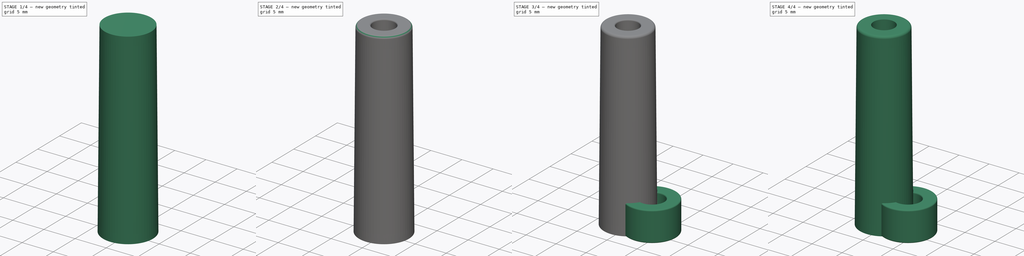
[diagram: build sequence overview — one tinted view per stage of 4, left to right]
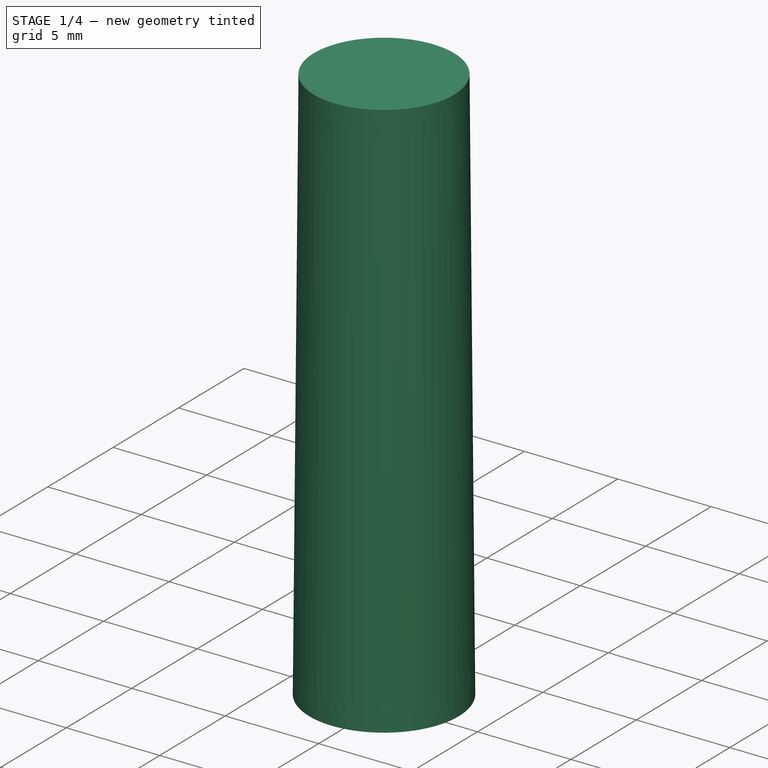
[diagram: stage 1 of 4 — iso view after this stage's code; geometry added in this stage tinted green]
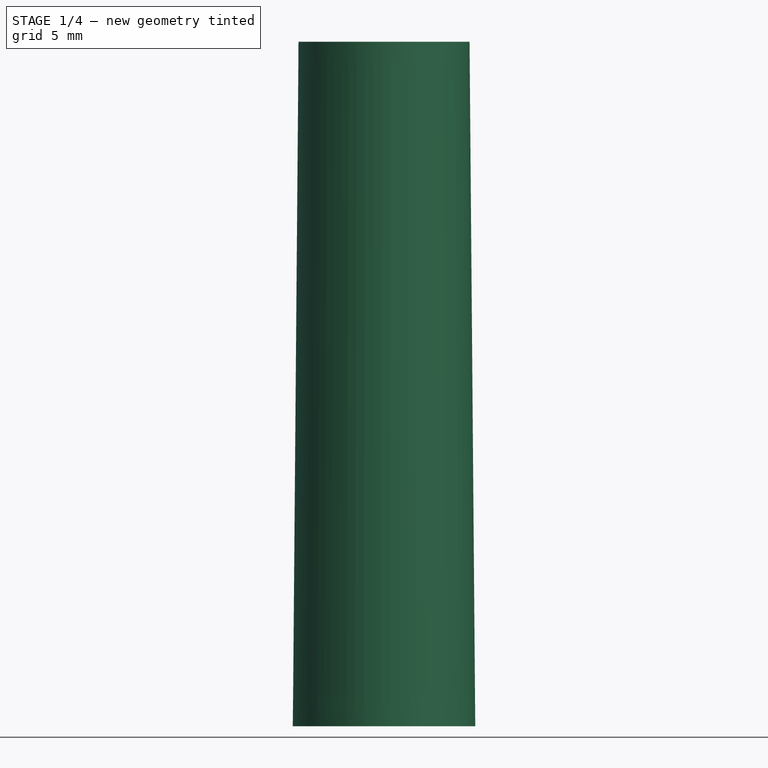
[diagram: stage 1 of 4 — front view after this stage's code; geometry added in this stage tinted green]
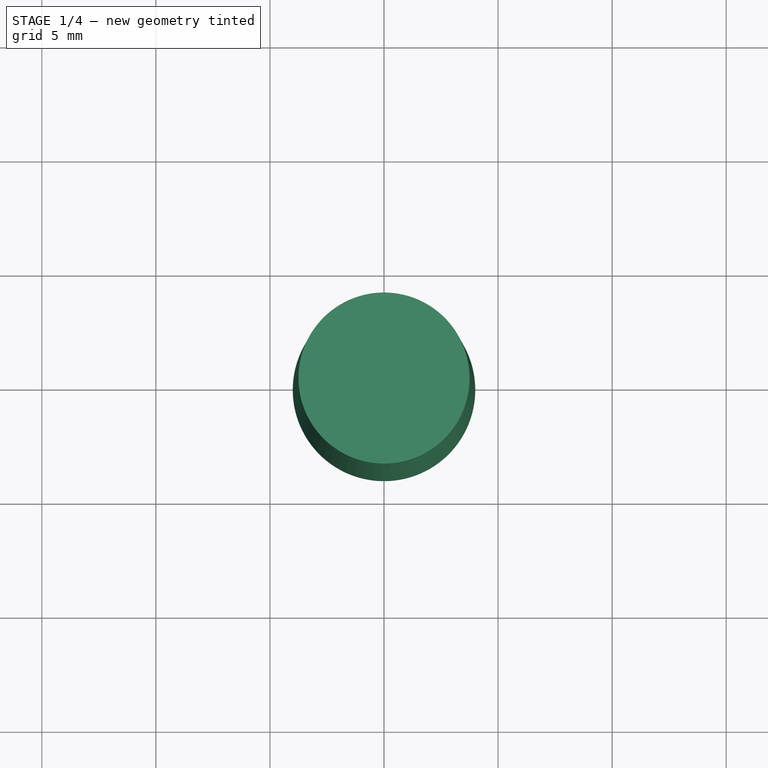
[diagram: stage 1 of 4 — top view after this stage's code; geometry added in this stage tinted green]
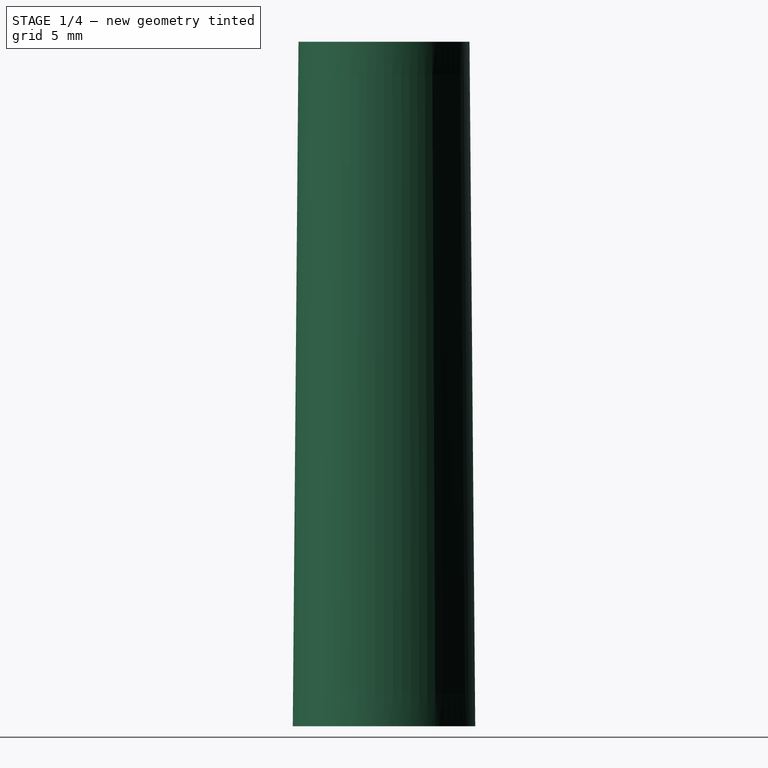
[diagram: stage 1 of 4 — right view after this stage's code; geometry added in this stage tinted green]
FCSTD DOCUMENT  (FreeCAD 0.16R6712 (Git))
Label: Antenna Mast Cap
License: All rights reserved
LicenseURL: http://en.wikipedia.org/wiki/All_rights_reserved
objects: PartDesign::Fillet×5, Part::Cone×2, Part::Cut×1, Sketcher::SketchObject×1, PartDesign::Pad×1, Part::MultiFuse×1
note: 12 computed .brp shape members not serialized (recipe doc carries the construction recipe); baked Part::Feature solids carry a one-line shape summary decoded from their .brp

FEATURE [Part::Cone] Cone  label="Inner Cutout"
  Angle = 360
  Height = 30
  Radius1 = 2
  Radius2 = 1.75
FEATURE [Part::Cone] Cone001  label="Outer Shell"
  Angle = 360
  Height = 30
  Radius1 = 4
  Radius2 = 3.75
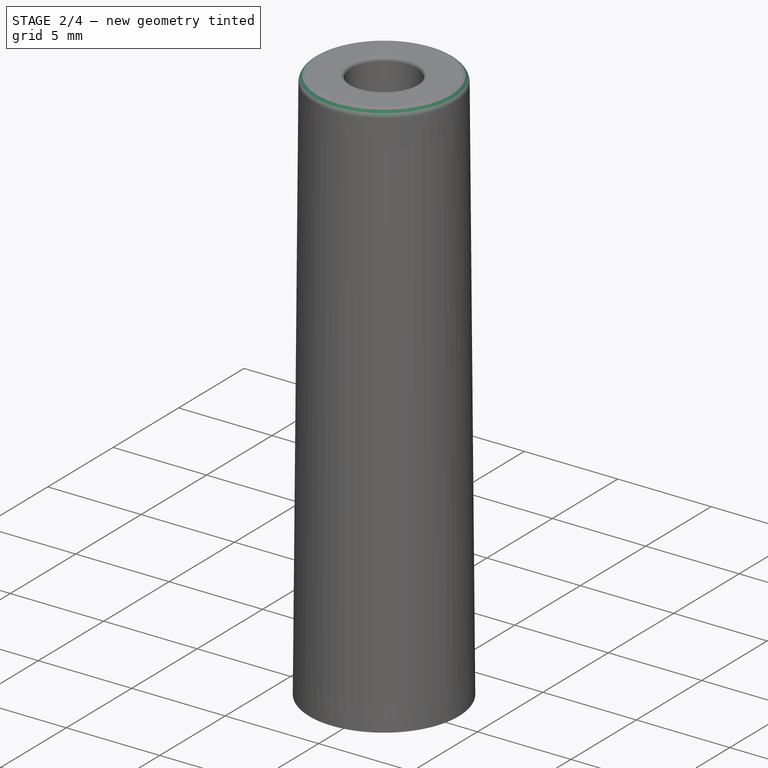
[diagram: stage 2 of 4 — iso view after this stage's code; geometry added in this stage tinted green]
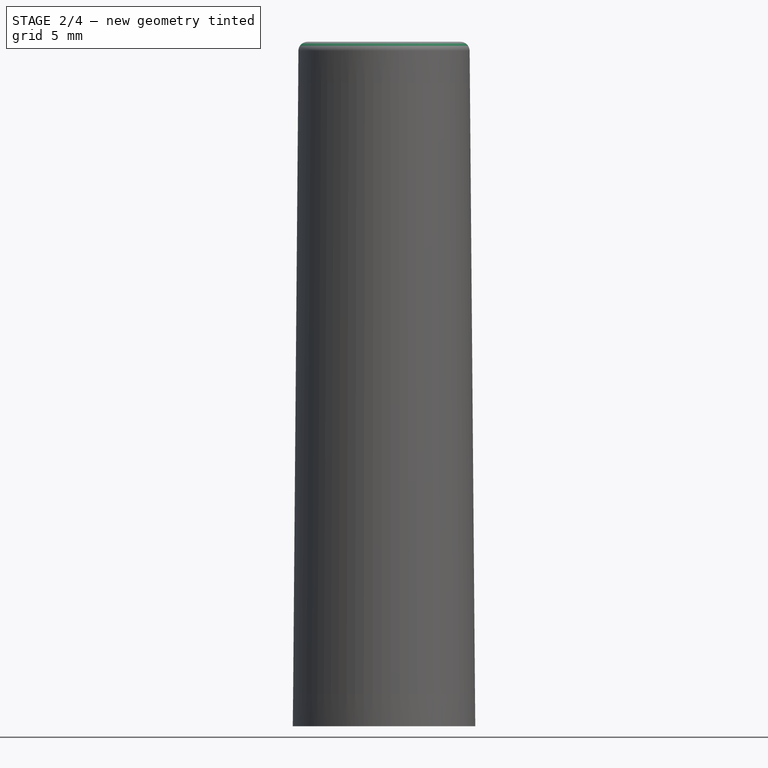
[diagram: stage 2 of 4 — front view after this stage's code; geometry added in this stage tinted green]
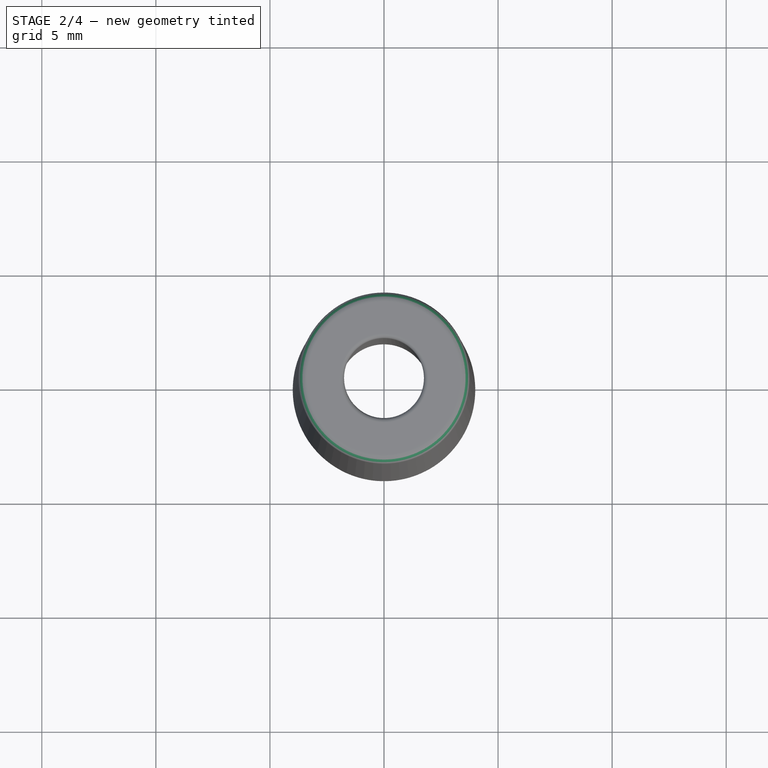
[diagram: stage 2 of 4 — top view after this stage's code; geometry added in this stage tinted green]
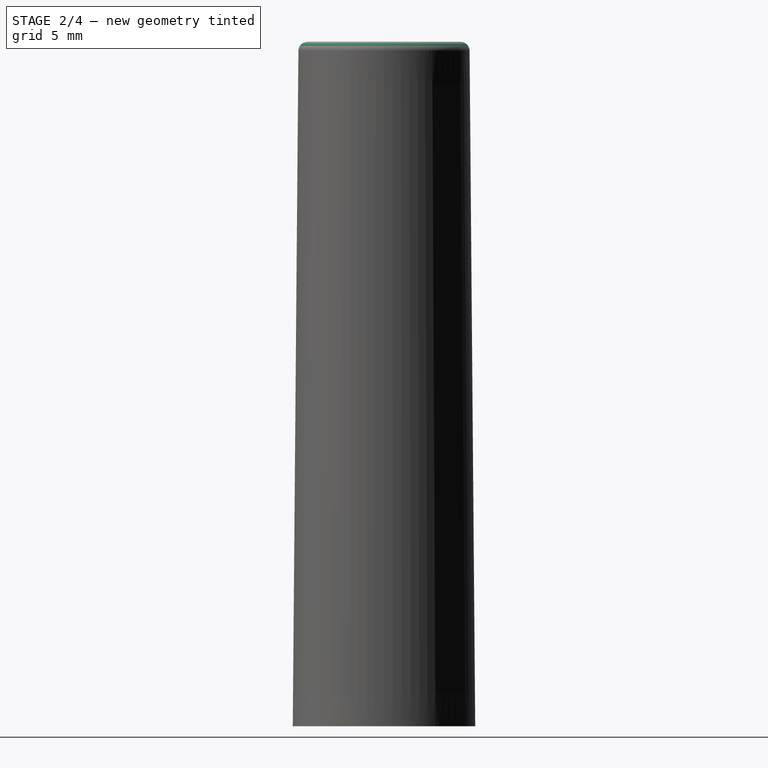
[diagram: stage 2 of 4 — right view after this stage's code; geometry added in this stage tinted green]
FEATURE [Part::Cut] Cut  label="Cap"
  Base = -> Cone001
  Tool = -> Cone
FEATURE [PartDesign::Fillet] Fillet  label="Cap with smoothed top"
  Base = -> Cut [Edge1]
  Radius = 0.4
FEATURE [PartDesign::Fillet] Fillet004
  Base = -> Fillet [Edge7]
  Radius = 0.2
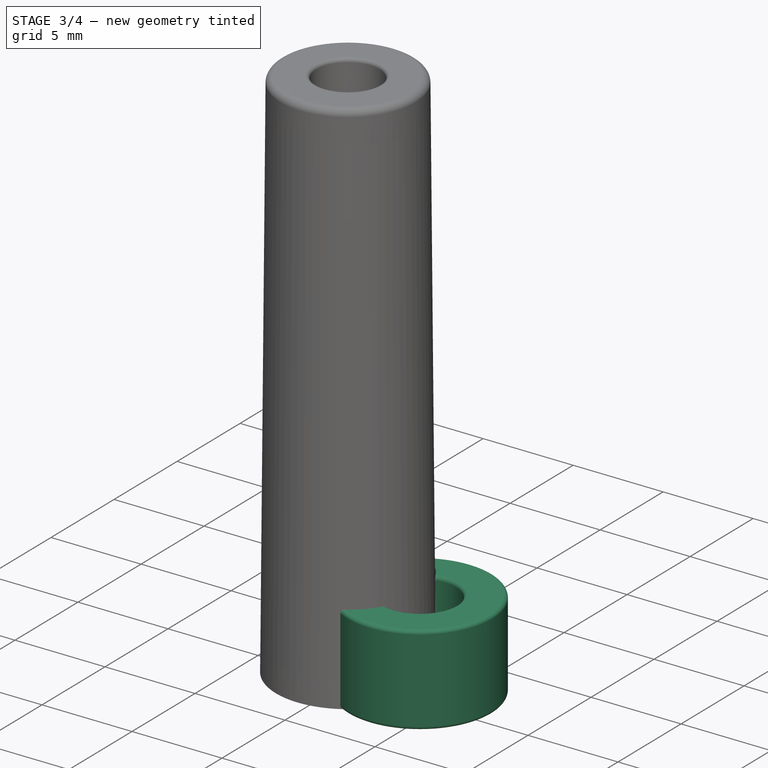
[diagram: stage 3 of 4 — iso view after this stage's code; geometry added in this stage tinted green]
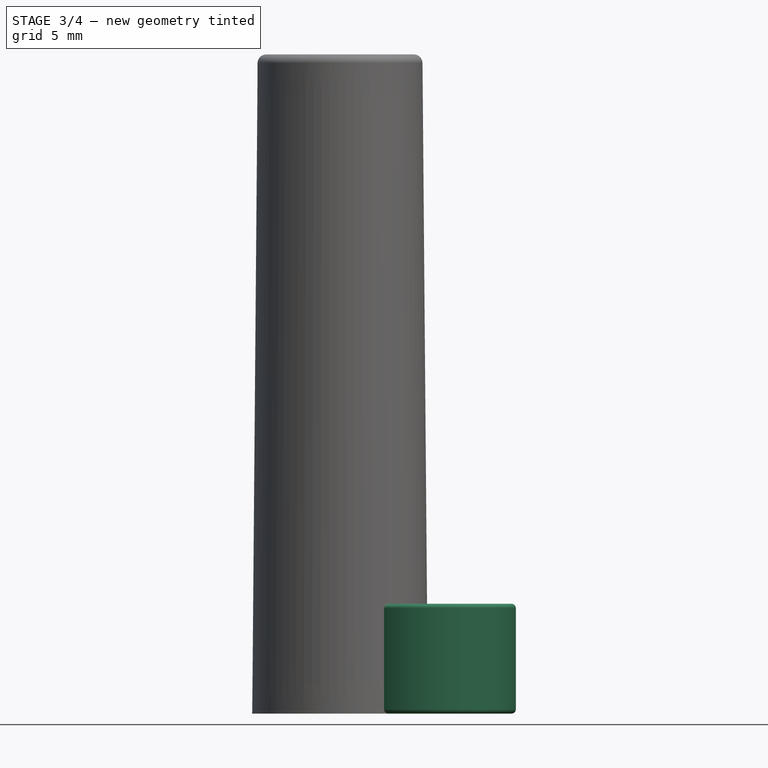
[diagram: stage 3 of 4 — front view after this stage's code; geometry added in this stage tinted green]
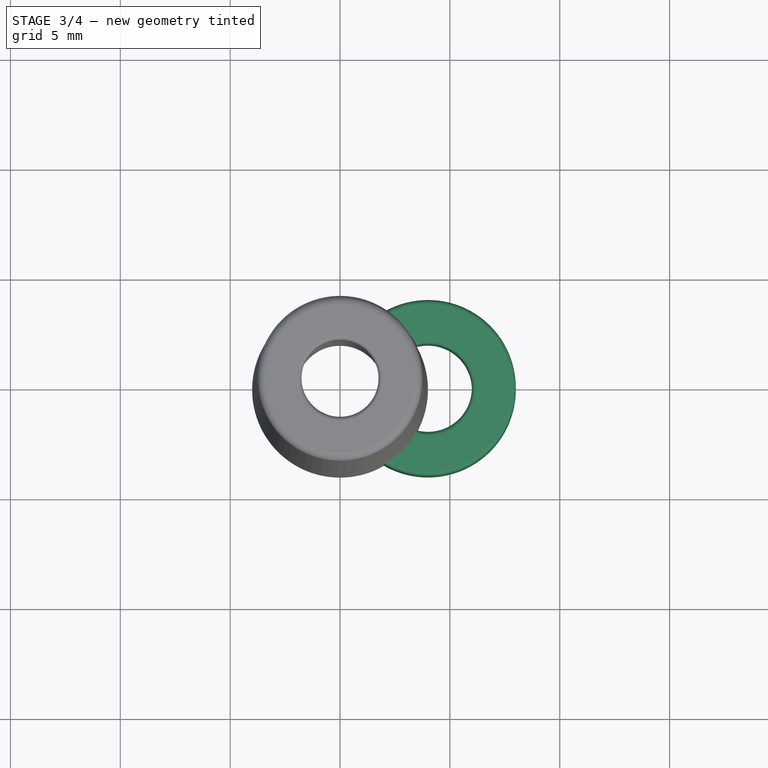
[diagram: stage 3 of 4 — top view after this stage's code; geometry added in this stage tinted green]
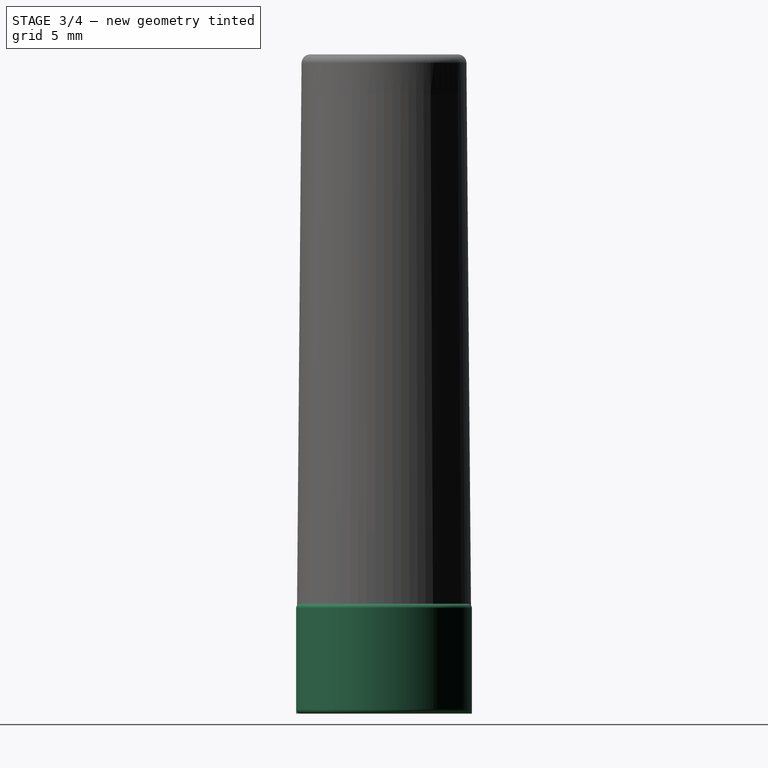
[diagram: stage 3 of 4 — right view after this stage's code; geometry added in this stage tinted green]
FEATURE [Sketcher::SketchObject] Sketch  label="Tie Loop"
  ExternalGeometry = -> [Cut]
  Placement = pos=(0,0,0) rot=(1,0,0;3.14159rad)
  Support = -> Cut [Face3]
  sketch-geometry (4):
    g0: ArcOfCircle CenterX=0 CenterY=0 CenterZ=0 NormalX=0 NormalY=0 NormalZ=1 Radius=4 StartAngle=0.505361 EndAngle=1.0472
    g1: ArcOfCircle CenterX=4 CenterY=0 CenterZ=0 NormalX=0 NormalY=0 NormalZ=1 Radius=4 StartAngle=4.18879 EndAngle=8.37758
    g2: ArcOfCircle CenterX=4 CenterY=0 CenterZ=0 NormalX=0 NormalY=0 NormalZ=1 Radius=2 StartAngle=4.45971 EndAngle=8.10666
    g3: ArcOfCircle CenterX=0 CenterY=0 CenterZ=0 NormalX=0 NormalY=0 NormalZ=1 Radius=4 StartAngle=5.23599 EndAngle=5.77782
  constraints (14):
    c: Radius(g1) = 4
    c: Coincident(g2,g1)
    c: Radius(g2) = 2
    c: Equal(g0,g3)
    c: Coincident(g0,g3)
    c: Coincident(g1,g3)
    c: Coincident(g1,g0)
    c: Coincident(g2,g3)
    c: Coincident(g2,g0)
    c: PointOnObject(g0,g-3)
    c: PointOnObject(g0,g-3)
    c: PointOnObject(g2,g-3)
    c: PointOnObject(g1,g-1)
    c: PointOnObject(g1,g-3)
FEATURE [PartDesign::Pad] Pad  label="Tie Loop Pad"
  Length = 5
  Length2 = 100
  Reversed = true
  Sketch = -> Sketch
  Type = 0
FEATURE [PartDesign::Fillet] Fillet001
  Base = -> Pad [Edge4,Edge12,Edge11,Edge3]
  Radius = 0.2
FEATURE [Part::MultiFuse] Fusion  label="Complete Cap"
  Shapes = -> [Fillet001,Fillet004]
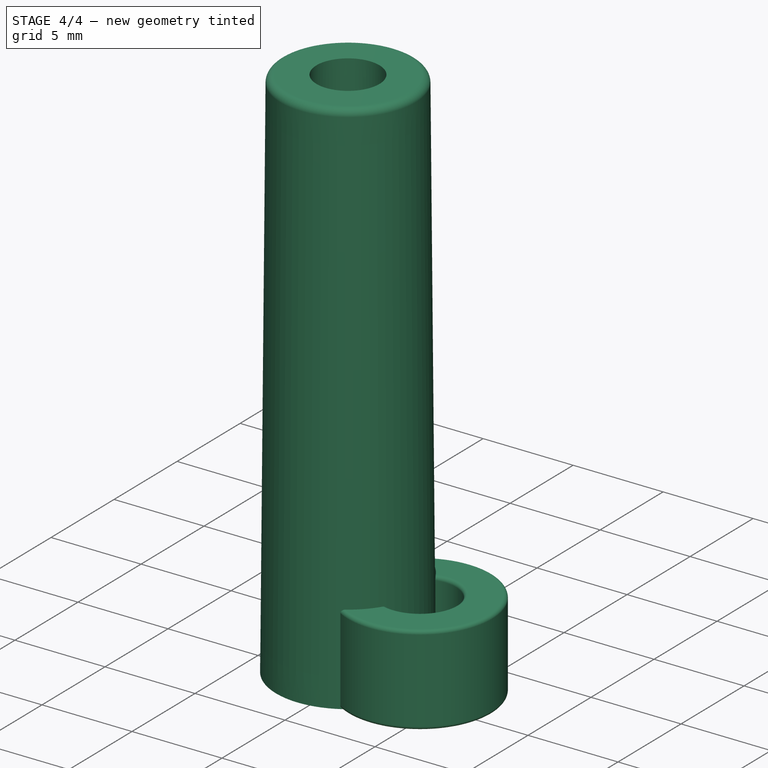
[diagram: stage 4 of 4 — iso view after this stage's code; geometry added in this stage tinted green]
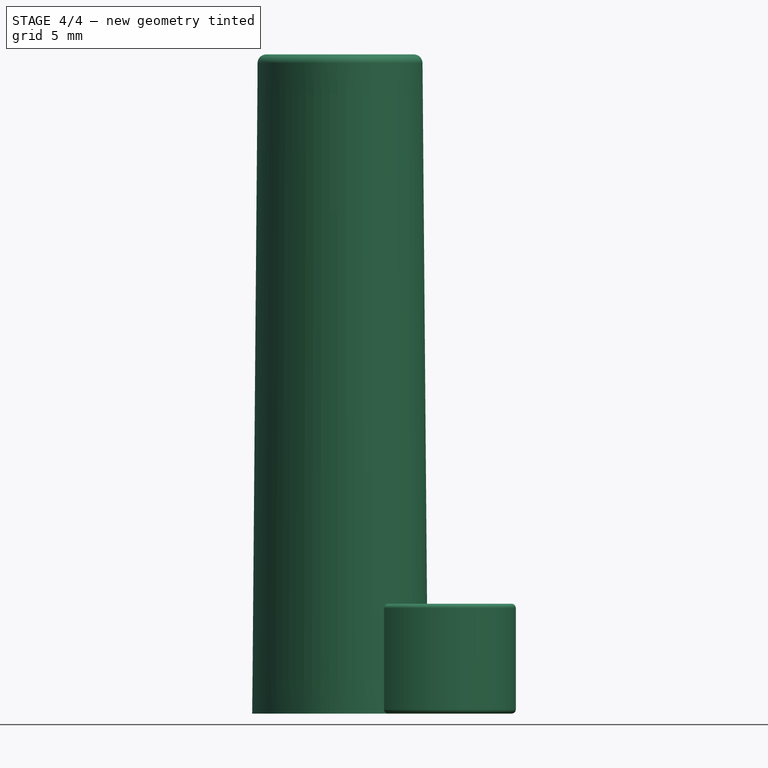
[diagram: stage 4 of 4 — front view after this stage's code; geometry added in this stage tinted green]
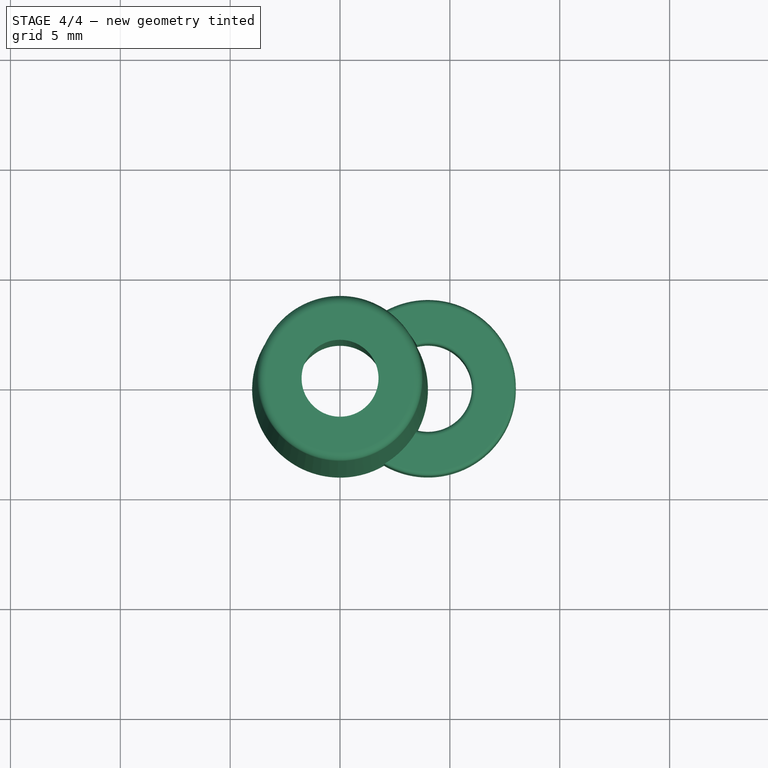
[diagram: stage 4 of 4 — top view after this stage's code; geometry added in this stage tinted green]
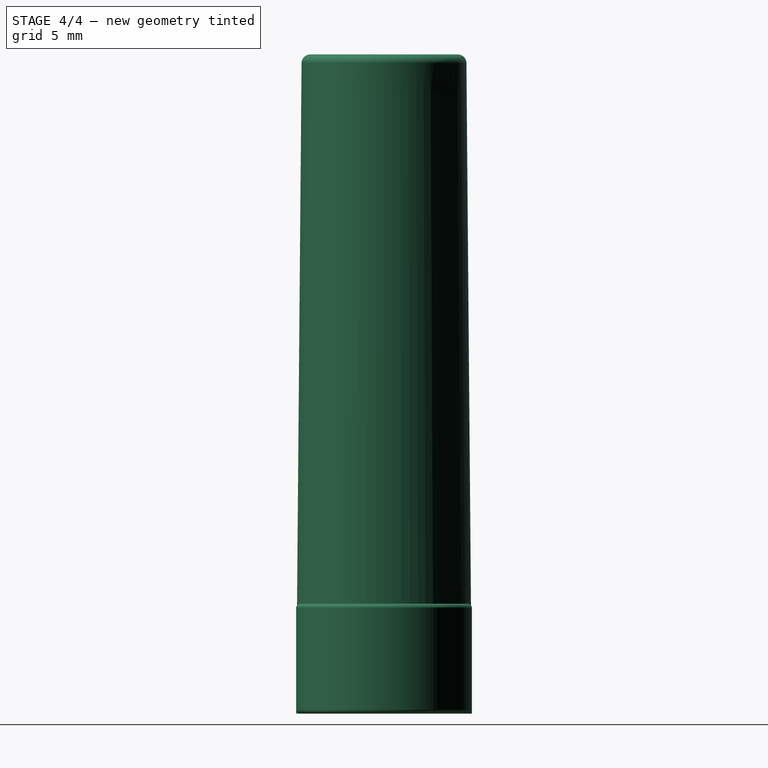
[diagram: stage 4 of 4 — right view after this stage's code; geometry added in this stage tinted green]
FEATURE [PartDesign::Fillet] Fillet002
  Base = -> Fillet [Edge3]
  Radius = 0.2
FEATURE [PartDesign::Fillet] Fillet003
  Base = -> Fillet002 [Edge8]
  Radius = 0.2
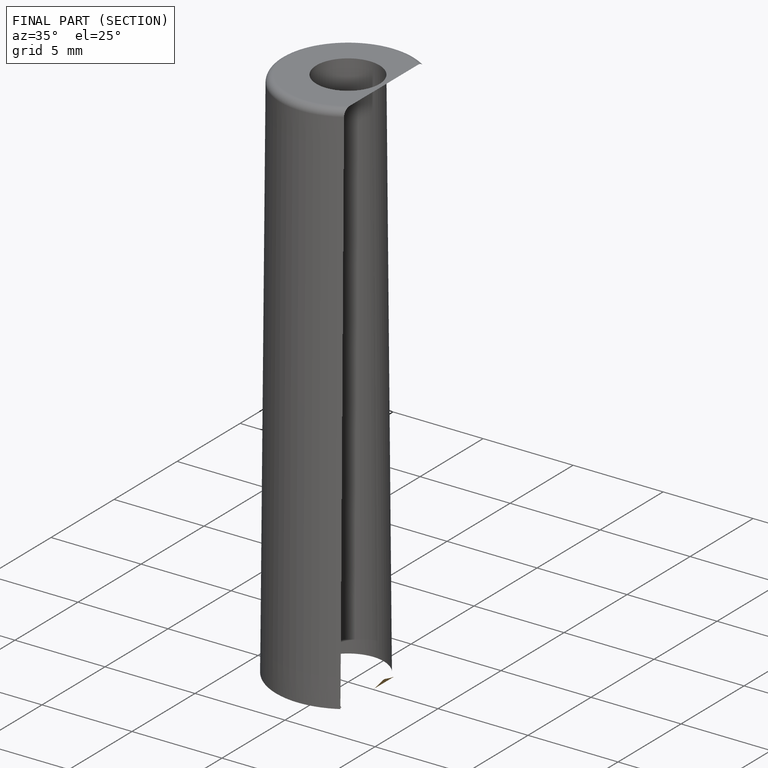
[diagram: finished part — half-section view (interior)]
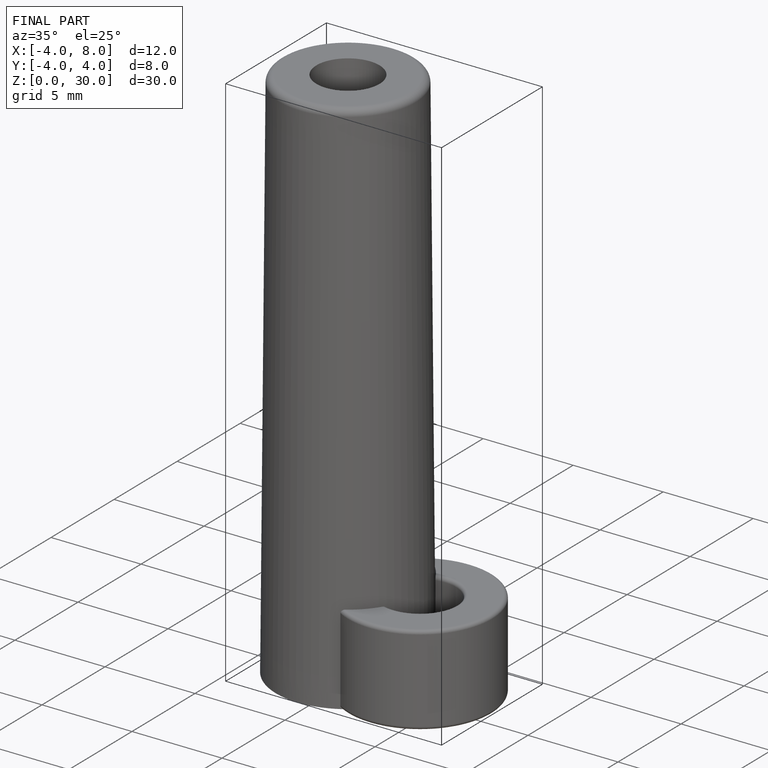
[diagram: finished part — iso view with bounding-box wireframe]
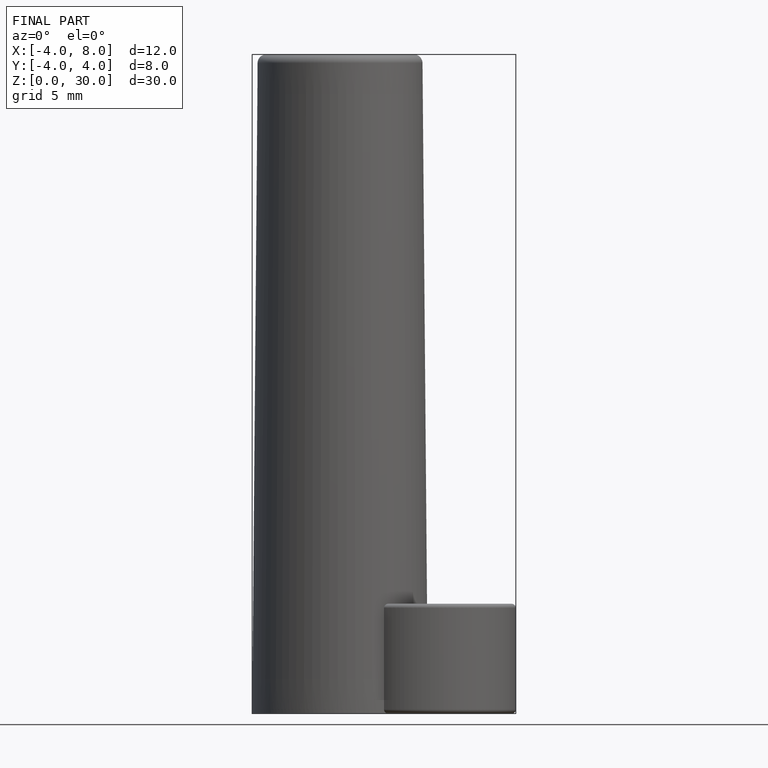
[diagram: finished part — front view with bounding-box wireframe]
